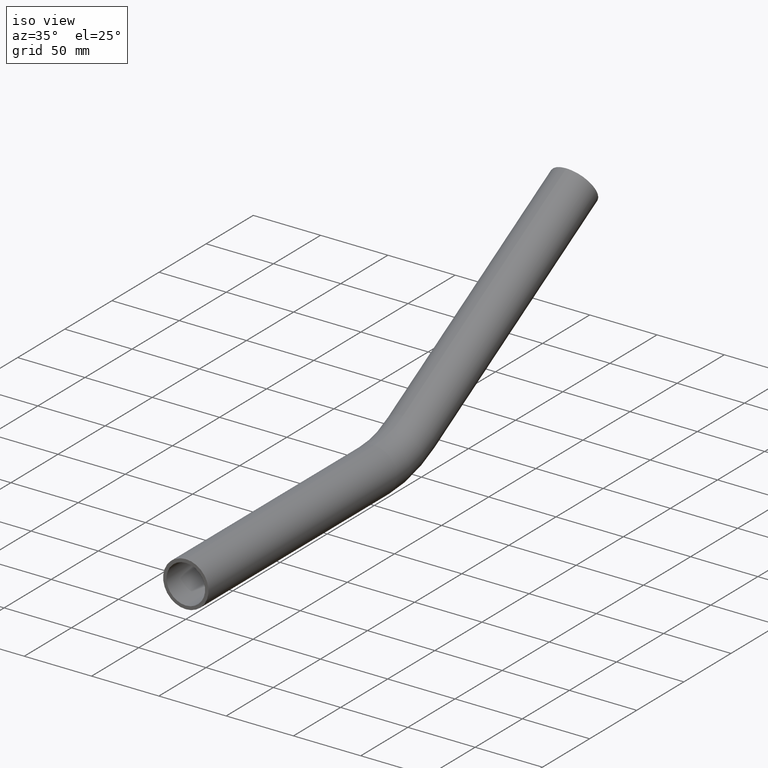
[diagram: clean part render]
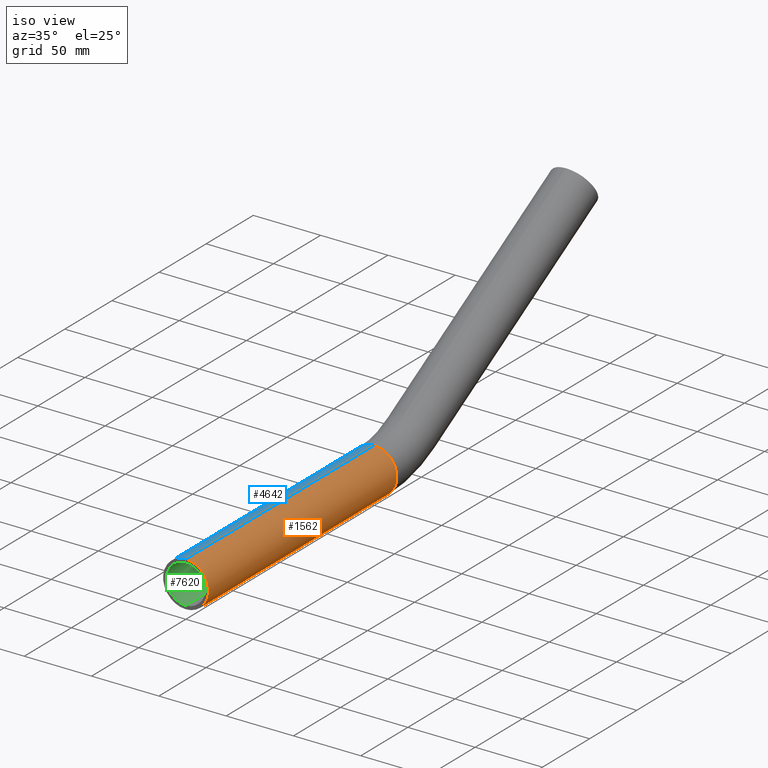
[diagram: same view with three faces highlighted in distinct colors, each labeled with its STEP entity id]
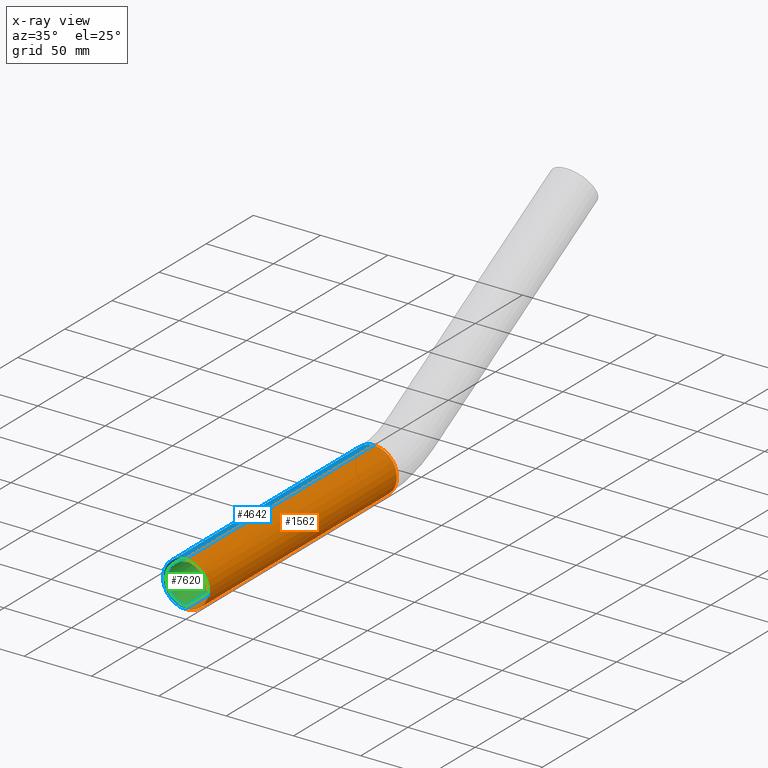
[diagram: x-ray of the same camera — body ghosted, the three highlighted faces saturated]
A machine part, iso view with three faces highlighted in distinct colors.
The next image is the same camera in x-ray (body ghosted, the three faces saturated) — at least one of them is partly hidden behind the body in this view.
Their STEP definitions:

[orange] entity #1562 — the highlighted cylindrical surface (edge-blend (fillet) strip) has radius 16.85 mm, axis along (-0, -1, -0).
#130 = AXIS2_PLACEMENT_3D ( 'NONE', #3654, #8913, #9805 ) ;
#392 = DIRECTION ( 'NONE',  ( 0.0000000000000000000, 0.0000000000000000000, 1.000000000000000000 ) ) ;
#513 = LINE ( 'NONE', #3048, #10819 ) ;
#539 = CARTESIAN_POINT ( 'NONE',  ( 0.0000000000000000000, 0.0000000000000000000, 0.0000000000000000000 ) ) ;
#1104 = AXIS2_PLACEMENT_3D ( 'NONE', #539, #11192, #392 ) ;
#1182 = EDGE_CURVE ( 'NONE', #10693, #5594, #9358, .T. ) ;
#1562 = ADVANCED_FACE ( 'NONE', ( #6174 ), #5080, .T. ) ;
#1842 = CIRCLE ( 'NONE', #6429, 16.85000000000000100 ) ;
#1853 = ORIENTED_EDGE ( 'NONE', *, *, #3362, .F. ) ;
#2169 = DIRECTION ( 'NONE',  ( -0.0000000000000000000, -1.000000000000000000, -0.0000000000000000000 ) ) ;
#2199 = CARTESIAN_POINT ( 'NONE',  ( 0.0000000000000000000, 200.0000000000000000, -16.85000000000000100 ) ) ;
#2332 = ORIENTED_EDGE ( 'NONE', *, *, #11128, .F. ) ;
#2351 = VECTOR ( 'NONE', #5344, 1000.000000000000000 ) ;
#3048 = CARTESIAN_POINT ( 'NONE',  ( 2.063529856563290200E-015, 200.0000000000000000, 16.85000000000000100 ) ) ;
#3362 = EDGE_CURVE ( 'NONE', #3663, #4562, #1842, .T. ) ;
#3569 = ORIENTED_EDGE ( 'NONE', *, *, #6931, .T. ) ;
#3654 = CARTESIAN_POINT ( 'NONE',  ( 0.0000000000000000000, 200.0000000000000000, 0.0000000000000000000 ) ) ;
#3663 = VERTEX_POINT ( 'NONE', #6261 ) ;
#3735 = ORIENTED_EDGE ( 'NONE', *, *, #1182, .T. ) ;
#4562 = VERTEX_POINT ( 'NONE', #2199 ) ;
#5080 = CYLINDRICAL_SURFACE ( 'NONE', #130, 16.85000000000000100 ) ;
#5344 = DIRECTION ( 'NONE',  ( -0.0000000000000000000, -1.000000000000000000, -0.0000000000000000000 ) ) ;
#5594 = VERTEX_POINT ( 'NONE', #9539 ) ;
#5846 = CARTESIAN_POINT ( 'NONE',  ( 0.0000000000000000000, 200.0000000000000000, 0.0000000000000000000 ) ) ;
#6174 = FACE_OUTER_BOUND ( 'NONE', #10405, .T. ) ;
#6261 = CARTESIAN_POINT ( 'NONE',  ( 2.063529856563290200E-015, 200.0000000000000000, 16.85000000000000100 ) ) ;
#6429 = AXIS2_PLACEMENT_3D ( 'NONE', #5846, #9320, #6739 ) ;
#6739 = DIRECTION ( 'NONE',  ( 0.0000000000000000000, 0.0000000000000000000, 1.000000000000000000 ) ) ;
#6931 = EDGE_CURVE ( 'NONE', #3663, #10693, #513, .T. ) ;
#8007 = CARTESIAN_POINT ( 'NONE',  ( 2.063529856563290200E-015, 0.0000000000000000000, 16.85000000000000100 ) ) ;
#8448 = LINE ( 'NONE', #10692, #2351 ) ;
#8913 = DIRECTION ( 'NONE',  ( -0.0000000000000000000, -1.000000000000000000, -0.0000000000000000000 ) ) ;
#9320 = DIRECTION ( 'NONE',  ( 0.0000000000000000000, 1.000000000000000000, 0.0000000000000000000 ) ) ;
#9358 = CIRCLE ( 'NONE', #1104, 16.85000000000000100 ) ;
#9539 = CARTESIAN_POINT ( 'NONE',  ( 0.0000000000000000000, 0.0000000000000000000, -16.85000000000000100 ) ) ;
#9805 = DIRECTION ( 'NONE',  ( 0.0000000000000000000, 0.0000000000000000000, -1.000000000000000000 ) ) ;
#10405 = EDGE_LOOP ( 'NONE', ( #1853, #3569, #3735, #2332 ) ) ;
#10692 = CARTESIAN_POINT ( 'NONE',  ( 0.0000000000000000000, 200.0000000000000000, -16.85000000000000100 ) ) ;
#10693 = VERTEX_POINT ( 'NONE', #8007 ) ;
#10819 = VECTOR ( 'NONE', #2169, 1000.000000000000000 ) ;
#11128 = EDGE_CURVE ( 'NONE', #4562, #5594, #8448, .T. ) ;
#11192 = DIRECTION ( 'NONE',  ( 0.0000000000000000000, 1.000000000000000000, 0.0000000000000000000 ) ) ;

[blue] entity #4642 — the highlighted cylindrical surface (edge-blend (fillet) strip) has radius 16.85 mm, axis along (-0, -1, -0).
#171 = CIRCLE ( 'NONE', #556, 16.85000000000000100 ) ;
#348 = AXIS2_PLACEMENT_3D ( 'NONE', #9704, #889, #962 ) ;
#513 = LINE ( 'NONE', #3048, #10819 ) ;
#556 = AXIS2_PLACEMENT_3D ( 'NONE', #9663, #4388, #7039 ) ;
#889 = DIRECTION ( 'NONE',  ( -0.0000000000000000000, -1.000000000000000000, -0.0000000000000000000 ) ) ;
#962 = DIRECTION ( 'NONE',  ( 0.0000000000000000000, 0.0000000000000000000, -1.000000000000000000 ) ) ;
#980 = EDGE_CURVE ( 'NONE', #5594, #10693, #171, .T. ) ;
#1470 = EDGE_LOOP ( 'NONE', ( #10954, #10145, #8382, #8792 ) ) ;
#1768 = AXIS2_PLACEMENT_3D ( 'NONE', #6704, #2238, #8437 ) ;
#2169 = DIRECTION ( 'NONE',  ( -0.0000000000000000000, -1.000000000000000000, -0.0000000000000000000 ) ) ;
#2199 = CARTESIAN_POINT ( 'NONE',  ( 0.0000000000000000000, 200.0000000000000000, -16.85000000000000100 ) ) ;
#2238 = DIRECTION ( 'NONE',  ( 0.0000000000000000000, 1.000000000000000000, 0.0000000000000000000 ) ) ;
#2245 = CIRCLE ( 'NONE', #1768, 16.85000000000000100 ) ;
#2351 = VECTOR ( 'NONE', #5344, 1000.000000000000000 ) ;
#3048 = CARTESIAN_POINT ( 'NONE',  ( 2.063529856563290200E-015, 200.0000000000000000, 16.85000000000000100 ) ) ;
#3379 = FACE_OUTER_BOUND ( 'NONE', #1470, .T. ) ;
#3663 = VERTEX_POINT ( 'NONE', #6261 ) ;
#4388 = DIRECTION ( 'NONE',  ( 0.0000000000000000000, 1.000000000000000000, 0.0000000000000000000 ) ) ;
#4562 = VERTEX_POINT ( 'NONE', #2199 ) ;
#4642 = ADVANCED_FACE ( 'NONE', ( #3379 ), #4928, .T. ) ;
#4928 = CYLINDRICAL_SURFACE ( 'NONE', #348, 16.85000000000000100 ) ;
#5344 = DIRECTION ( 'NONE',  ( -0.0000000000000000000, -1.000000000000000000, -0.0000000000000000000 ) ) ;
#5594 = VERTEX_POINT ( 'NONE', #9539 ) ;
#6261 = CARTESIAN_POINT ( 'NONE',  ( 2.063529856563290200E-015, 200.0000000000000000, 16.85000000000000100 ) ) ;
#6704 = CARTESIAN_POINT ( 'NONE',  ( 0.0000000000000000000, 200.0000000000000000, 0.0000000000000000000 ) ) ;
#6931 = EDGE_CURVE ( 'NONE', #3663, #10693, #513, .T. ) ;
#7039 = DIRECTION ( 'NONE',  ( 0.0000000000000000000, 0.0000000000000000000, 1.000000000000000000 ) ) ;
#7093 = EDGE_CURVE ( 'NONE', #4562, #3663, #2245, .T. ) ;
#8007 = CARTESIAN_POINT ( 'NONE',  ( 2.063529856563290200E-015, 0.0000000000000000000, 16.85000000000000100 ) ) ;
#8382 = ORIENTED_EDGE ( 'NONE', *, *, #11128, .T. ) ;
#8437 = DIRECTION ( 'NONE',  ( 0.0000000000000000000, 0.0000000000000000000, 1.000000000000000000 ) ) ;
#8448 = LINE ( 'NONE', #10692, #2351 ) ;
#8792 = ORIENTED_EDGE ( 'NONE', *, *, #980, .T. ) ;
#9539 = CARTESIAN_POINT ( 'NONE',  ( 0.0000000000000000000, 0.0000000000000000000, -16.85000000000000100 ) ) ;
#9663 = CARTESIAN_POINT ( 'NONE',  ( 0.0000000000000000000, 0.0000000000000000000, 0.0000000000000000000 ) ) ;
#9704 = CARTESIAN_POINT ( 'NONE',  ( 0.0000000000000000000, 200.0000000000000000, 0.0000000000000000000 ) ) ;
#10145 = ORIENTED_EDGE ( 'NONE', *, *, #7093, .F. ) ;
#10692 = CARTESIAN_POINT ( 'NONE',  ( 0.0000000000000000000, 200.0000000000000000, -16.85000000000000100 ) ) ;
#10693 = VERTEX_POINT ( 'NONE', #8007 ) ;
#10819 = VECTOR ( 'NONE', #2169, 1000.000000000000000 ) ;
#10954 = ORIENTED_EDGE ( 'NONE', *, *, #6931, .F. ) ;
#11128 = EDGE_CURVE ( 'NONE', #4562, #5594, #8448, .T. ) ;

[green] entity #7620 — the highlighted cylindrical surface (edge-blend (fillet) strip) has radius 14.35 mm, axis along (-0, -1, -0).
#116 = DIRECTION ( 'NONE',  ( 0.0000000000000000000, 0.0000000000000000000, -1.000000000000000000 ) ) ;
#227 = DIRECTION ( 'NONE',  ( -0.0000000000000000000, -1.000000000000000000, -0.0000000000000000000 ) ) ;
#252 = DIRECTION ( 'NONE',  ( -0.0000000000000000000, -1.000000000000000000, -0.0000000000000000000 ) ) ;
#617 = DIRECTION ( 'NONE',  ( 0.0000000000000000000, 0.0000000000000000000, 1.000000000000000000 ) ) ;
#1235 = FACE_OUTER_BOUND ( 'NONE', #5914, .T. ) ;
#1249 = VECTOR ( 'NONE', #227, 1000.000000000000000 ) ;
#1391 = ORIENTED_EDGE ( 'NONE', *, *, #6258, .T. ) ;
#1615 = DIRECTION ( 'NONE',  ( 0.0000000000000000000, 0.0000000000000000000, 1.000000000000000000 ) ) ;
#2018 = VERTEX_POINT ( 'NONE', #6324 ) ;
#2086 = CIRCLE ( 'NONE', #8261, 14.35000000000000300 ) ;
#2257 = AXIS2_PLACEMENT_3D ( 'NONE', #5249, #6988, #617 ) ;
#2566 = VERTEX_POINT ( 'NONE', #9544 ) ;
#2695 = CARTESIAN_POINT ( 'NONE',  ( 0.0000000000000000000, 0.0000000000000000000, 0.0000000000000000000 ) ) ;
#3127 = VERTEX_POINT ( 'NONE', #5966 ) ;
#3368 = LINE ( 'NONE', #9085, #3651 ) ;
#3483 = EDGE_CURVE ( 'NONE', #2018, #7652, #10430, .T. ) ;
#3645 = CARTESIAN_POINT ( 'NONE',  ( 0.0000000000000000000, 200.0000000000000000, 0.0000000000000000000 ) ) ;
#3651 = VECTOR ( 'NONE', #252, 1000.000000000000000 ) ;
#4201 = LINE ( 'NONE', #9011, #1249 ) ;
#4295 = DIRECTION ( 'NONE',  ( 0.0000000000000000000, 1.000000000000000000, 0.0000000000000000000 ) ) ;
#4885 = ORIENTED_EDGE ( 'NONE', *, *, #5414, .F. ) ;
#5249 = CARTESIAN_POINT ( 'NONE',  ( 0.0000000000000000000, 200.0000000000000000, 0.0000000000000000000 ) ) ;
#5414 = EDGE_CURVE ( 'NONE', #2018, #3127, #3368, .T. ) ;
#5914 = EDGE_LOOP ( 'NONE', ( #9870, #1391, #8952, #4885 ) ) ;
#5966 = CARTESIAN_POINT ( 'NONE',  ( 0.0000000000000000000, 0.0000000000000000000, -14.35000000000000300 ) ) ;
#6258 = EDGE_CURVE ( 'NONE', #7652, #2566, #4201, .T. ) ;
#6324 = CARTESIAN_POINT ( 'NONE',  ( 0.0000000000000000000, 200.0000000000000000, -14.35000000000000300 ) ) ;
#6635 = AXIS2_PLACEMENT_3D ( 'NONE', #3645, #10599, #116 ) ;
#6988 = DIRECTION ( 'NONE',  ( 0.0000000000000000000, 1.000000000000000000, 0.0000000000000000000 ) ) ;
#7492 = CYLINDRICAL_SURFACE ( 'NONE', #6635, 14.35000000000000300 ) ;
#7620 = ADVANCED_FACE ( 'NONE', ( #1235 ), #7492, .F. ) ;
#7652 = VERTEX_POINT ( 'NONE', #11504 ) ;
#8261 = AXIS2_PLACEMENT_3D ( 'NONE', #2695, #4295, #1615 ) ;
#8810 = EDGE_CURVE ( 'NONE', #3127, #2566, #2086, .T. ) ;
#8952 = ORIENTED_EDGE ( 'NONE', *, *, #8810, .F. ) ;
#9011 = CARTESIAN_POINT ( 'NONE',  ( 1.757368156776452400E-015, 200.0000000000000000, 14.35000000000000300 ) ) ;
#9085 = CARTESIAN_POINT ( 'NONE',  ( 0.0000000000000000000, 200.0000000000000000, -14.35000000000000300 ) ) ;
#9544 = CARTESIAN_POINT ( 'NONE',  ( 1.757368156776452400E-015, 0.0000000000000000000, 14.35000000000000300 ) ) ;
#9870 = ORIENTED_EDGE ( 'NONE', *, *, #3483, .T. ) ;
#10430 = CIRCLE ( 'NONE', #2257, 14.35000000000000300 ) ;
#10599 = DIRECTION ( 'NONE',  ( -0.0000000000000000000, -1.000000000000000000, -0.0000000000000000000 ) ) ;
#11504 = CARTESIAN_POINT ( 'NONE',  ( 1.757368156776452400E-015, 200.0000000000000000, 14.35000000000000300 ) ) ;